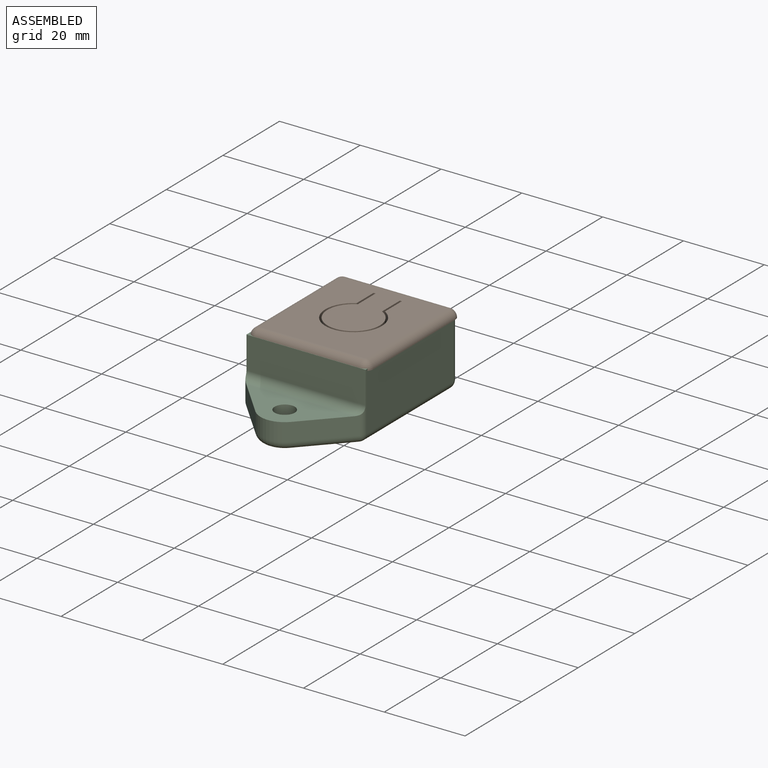
[diagram: assembled view]
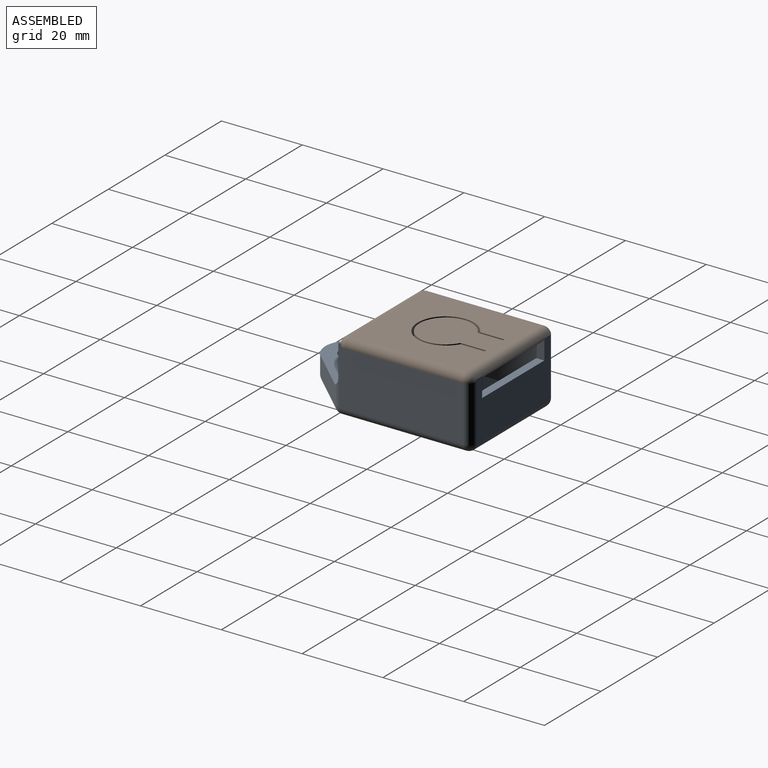
[diagram: assembled view, second angle]
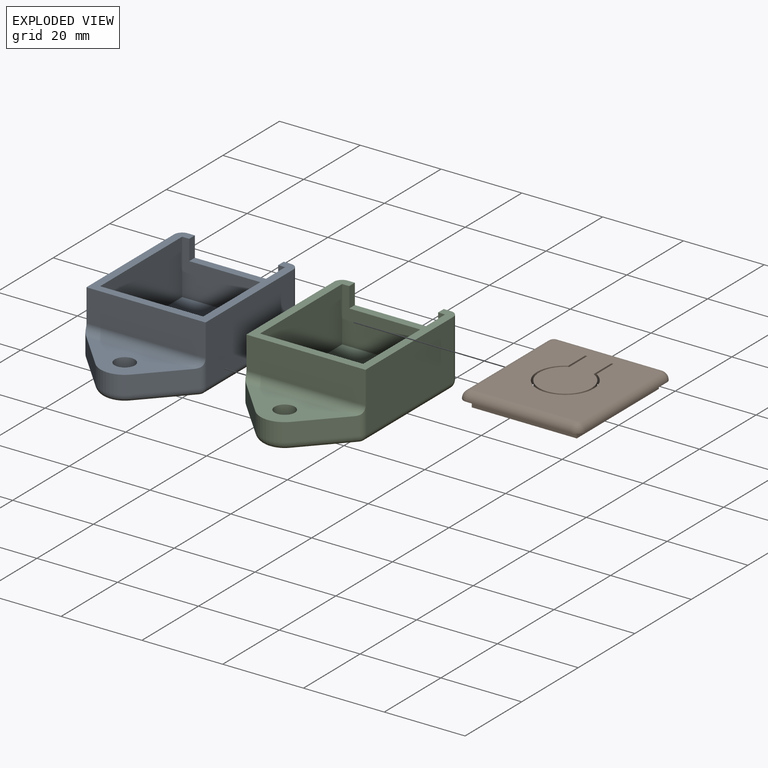
[diagram: exploded view]
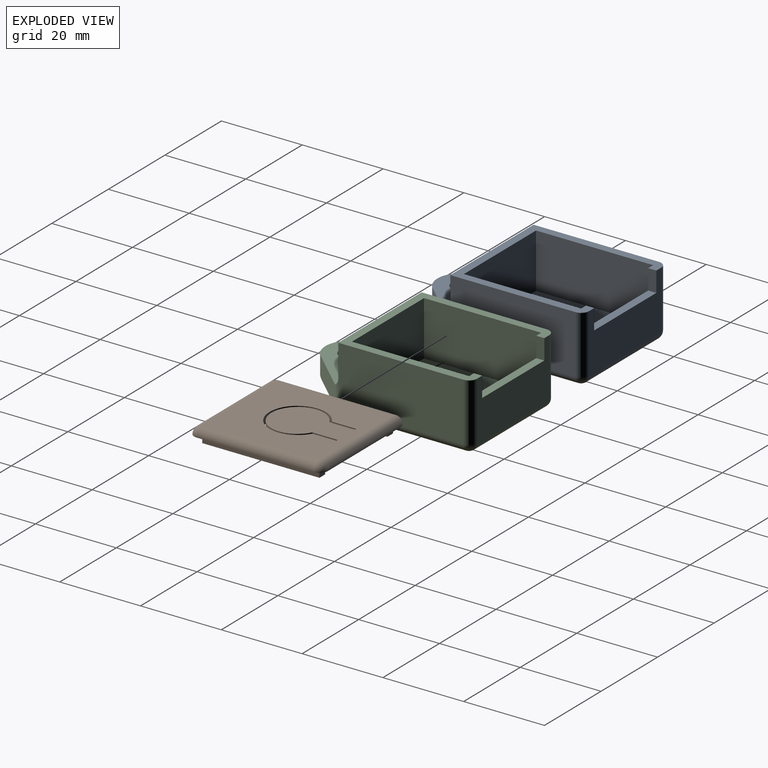
[diagram: exploded view, second angle]
ASSEMBLY  parts=3 mates=2
PART A: 34 faces, bbox 29.5x47x16.5 mm
  f0: plane 10.55x9.85mm, normal (-0.73,-0.68,0), area 64.9mm2, adj f4,f18,f24,f29,f33
  f1: plane 10.55x9.85mm, normal (0.73,-0.68,0), area 64.9mm2, adj f4,f18,f27,f32,f33
  f2: plane 30.71x14.5mm, normal (1,0,0), area 445.3mm2, adj f3,f21,f27,f28
  f3: plane 33x29.5mm, normal (0,0,1), area 188.3mm2, adj f2,f6,f7,f8,f10,f11,f12,f14
  f4: cylinder r=6mm len=8.77mm, axis (0,0,-1), area 44.2mm2, adj f0,f1,f18,f31
  f5: cylinder r=2.5mm len=6.5mm, axis (0,0,-1), area 102.1mm2, adj f9,f18
  f6: plane 25.5x13.5mm, normal (0,-1,0), area 234.2mm2, adj f3,f10,f12,f13,f14,f15,f16
  f7: plane 25.5x14.5mm, normal (0,1,0), area 259.8mm2, adj f3,f14,f15,f16,f19,f21,f22
  f8: plane 30.71x14.5mm, normal (-1,0,0), area 445.3mm2, adj f3,f19,f23,f24
  f9: plane 42.5x25.5mm, normal (0,0,-1), area 933.5mm2, adj f5,f22,f23,f28,f29,f31,f32
  f10: plane 29x13.5mm, normal (1,0,0), area 391.5mm2, adj f3,f6,f11,f13
  f11: plane 25.5x13.5mm, normal (0,1,0), area 344.2mm2, adj f3,f10,f12,f13
  f12: plane 29x13.5mm, normal (-1,0,0), area 391.5mm2, adj f3,f6,f11,f13
  f13: plane 29x25.5mm, normal (0,0,1), area 739.5mm2, adj f6,f10,f11,f12
  f14: plane 5x2mm, normal (-1,0,0), area 10mm2, adj f3,f6,f7,f15
  f15: plane 22x2mm, normal (0,0,1), area 44mm2, adj f6,f7,f14,f16
  f16: plane 5x2mm, normal (1,0,0), area 10mm2, adj f3,f6,f7,f15
  f17: plane 29.46x8mm, normal (0,-1,0), area 235.7mm2, adj f3,f24,f27,f33
  f18: plane 26.7x11.5mm, normal (0,0,1), area 162.1mm2, adj f0,f1,f4,f5,f33
  f19: cylinder r=2mm len=14.5mm, axis (0,0,1), area 45.6mm2, adj f3,f7,f8,f20
  f20: sphere r=2mm, area 6.3mm2, adj f19,f22,f23
  f21: cylinder r=2mm len=14.5mm, axis (0,0,-1), area 45.6mm2, adj f2,f3,f7,f25
  f22: cylinder r=2mm len=25.5mm, axis (-1,0,0), area 80.1mm2, adj f7,f9,f20,f25
  f23: cylinder r=2mm len=30.71mm, axis (0,-1,0), area 96.5mm2, adj f8,f9,f20,f26
  f24: cylinder r=2mm len=14.5mm, axis (0,0,-1), area 10.5mm2, adj f0,f3,f8,f17,f26,f33
  f25: sphere r=2mm, area 6.3mm2, adj f21,f22,f28
  f26: sphere r=2mm, area 3mm2, adj f23,f24,f29
  f27: cylinder r=2mm len=14.5mm, axis (0,0,-1), area 10.5mm2, adj f1,f2,f3,f17,f30,f33
  f28: cylinder r=2mm len=30.71mm, axis (0,1,0), area 96.5mm2, adj f2,f9,f25,f30
  f29: cylinder r=2mm len=11.88mm, axis (0.68,-0.73,0), area 45.2mm2, adj f0,f9,f26,f31
  f30: sphere r=2mm, area 3mm2, adj f27,f28,f32
  f31: torus R=4mm, axis (0,0,1), area 27.1mm2, adj f4,f9,f29,f32
  f32: cylinder r=2mm len=11.88mm, axis (0.68,0.73,0), area 45.2mm2, adj f1,f9,f30,f31
  f33: cylinder r=2mm len=29.46mm, axis (-1,0,0), area 90.2mm2, adj f0,f1,f17,f18,f24,f27
PART B: 27 faces, bbox 30x33x4 mm
  f0: plane 33x30mm, normal (0,0,1), area 802.6mm2, adj f2,f3,f4,f5,f6,f7,f8,f9
  f1: plane 29x26mm, normal (0,0,-1), area 730mm2, adj f3,f4,f7,f8,f19,f20,f21,f22
  f2: sphere r=2mm, area 6.3mm2, adj f0,f3,f4
  f3: cylinder r=2mm len=26mm, axis (1,0,0), area 81.7mm2, adj f0,f1,f2,f5
  f4: cylinder r=2mm len=29mm, axis (0,1,0), area 91.1mm2, adj f0,f1,f2,f6
  f5: sphere r=2mm, area 6.3mm2, adj f0,f3,f7
  f6: sphere r=2mm, area 6.3mm2, adj f0,f4,f8
  f7: cylinder r=2mm len=29mm, axis (0,-1,0), area 91.1mm2, adj f0,f1,f5,f9
  f8: cylinder r=2mm len=26mm, axis (-1,0,0), area 81.7mm2, adj f0,f1,f6,f9
  f9: sphere r=2mm, area 6.3mm2, adj f0,f7,f8
  f10: plane 29x2mm, normal (1,0,0), area 58mm2, adj f0,f11,f17,f18
  f11: plane 2x2mm, normal (0,1,0), area 4mm2, adj f0,f10,f12,f18
  f12: plane 27x2mm, normal (-1,0,0), area 54mm2, adj f0,f11,f13,f18
  f13: plane 22x2mm, normal (0,1,0), area 44mm2, adj f0,f12,f14,f18
  f14: plane 27x2mm, normal (1,0,0), area 54mm2, adj f0,f13,f15,f18
  f15: plane 2x2mm, normal (0,1,0), area 4mm2, adj f0,f14,f16,f18
  f16: plane 29x2mm, normal (-1,0,0), area 58mm2, adj f0,f15,f17,f18
  f17: plane 26x2mm, normal (0,-1,0), area 52mm2, adj f0,f10,f16,f18
  f18: plane 29x26mm, normal (0,0,1), area 160mm2, adj f10,f11,f12,f13,f14,f15,f16,f17
  f19: plane 6.3x2mm, normal (1,0,0), area 12.6mm2, adj f0,f1,f20,f26
  f20: plane 2x0.5mm, normal (0,-1,0), area 1mm2, adj f0,f1,f19,f21
  f21: plane 6x2mm, normal (-1,0,0), area 12mm2, adj f0,f1,f20,f22
  f22: cylinder r=7mm len=14mm, axis (0,0,-1), area 73.3mm2, adj f0,f1,f21,f23
  f23: plane 6x2mm, normal (1,0,0), area 12mm2, adj f0,f1,f22,f24
  f24: plane 2x0.5mm, normal (0,-1,0), area 1mm2, adj f0,f1,f23,f25
  f25: plane 6.3x2mm, normal (-1,0,0), area 12.6mm2, adj f0,f1,f24,f26
  f26: cylinder r=6.5mm len=13mm, axis (0,0,-1), area 69.2mm2, adj f0,f1,f19,f25
PART C: same geometry as A
PLACE A t=(-10.66,-1.96,-1.71)mm fixed
PLACE B rot(axis=(0,1,0),180deg) t=(-10.41,-1.71,16.29)mm
PLACE C t=(-10.66,-1.96,-1.71)mm
MATE planar B.f10 <-> A.f10  axis (-1,0,0) through (-23.41,-1.71,13.29)mm
MATE planar B.f17 <-> A.f11  axis (0,-1,0) through (-23.41,-16.21,13.29)mm
